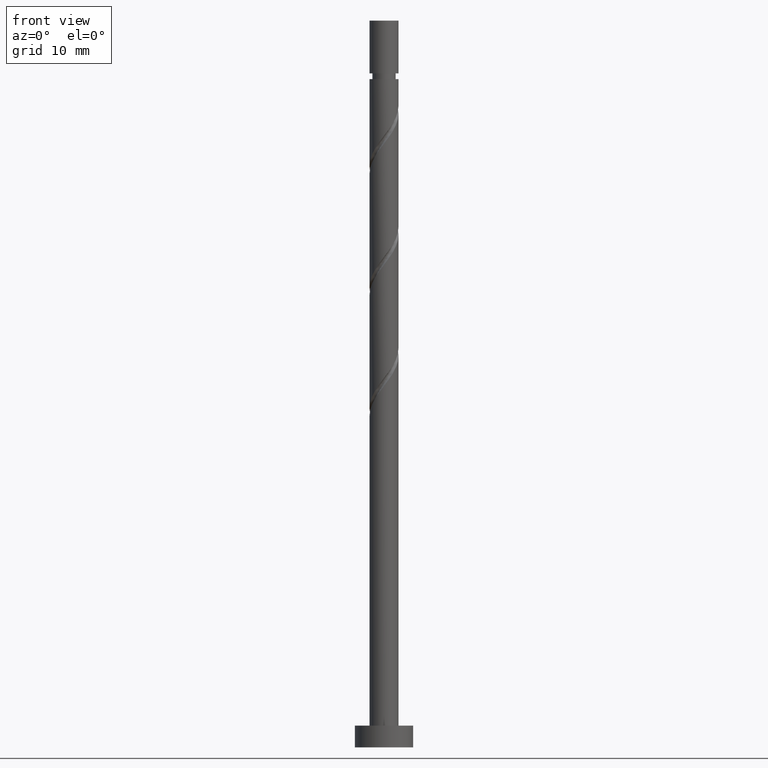
[diagram: clean part render]
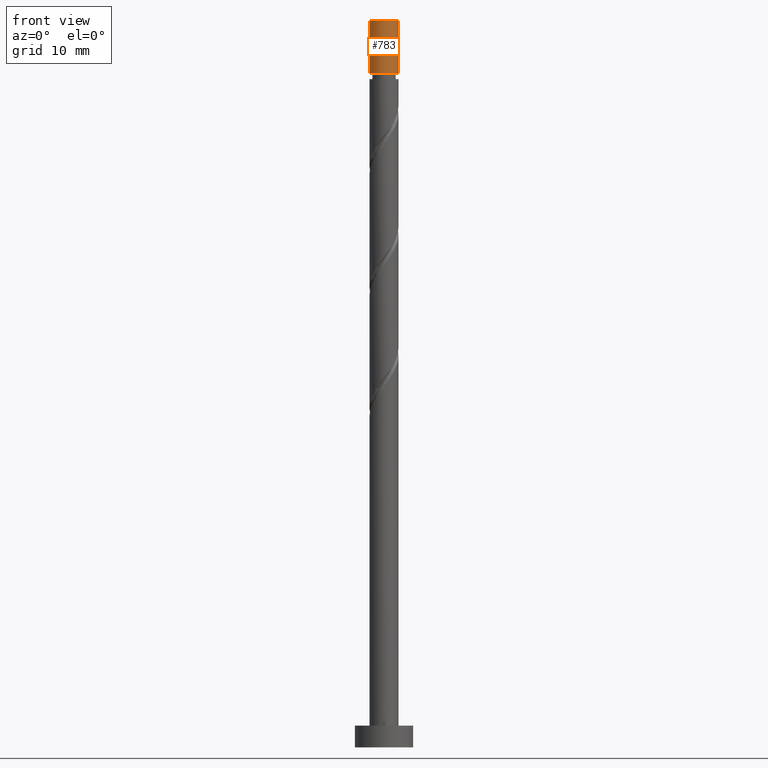
[diagram: same view with one face highlighted and labeled with its STEP entity id]
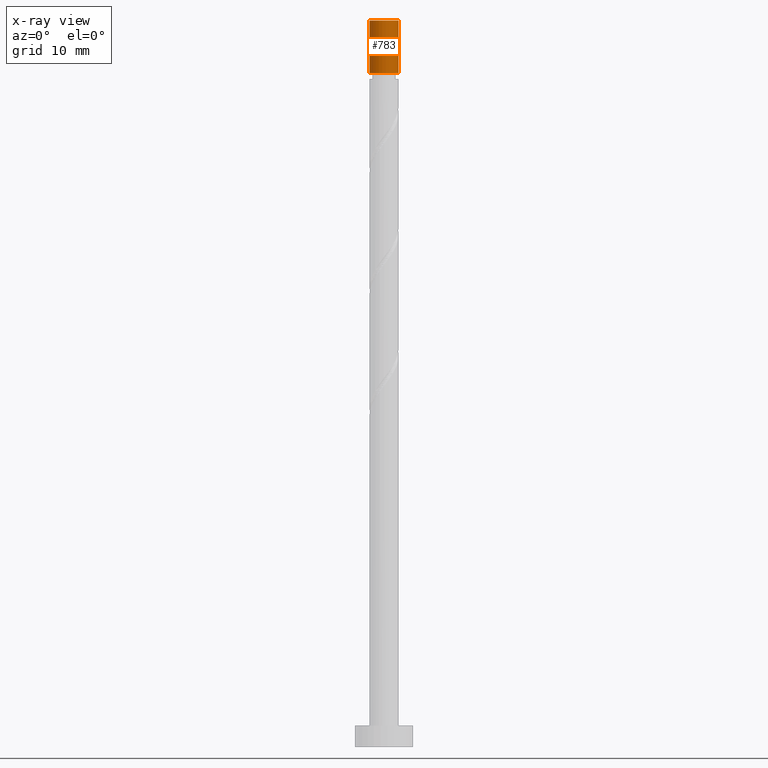
[diagram: x-ray of the same camera — body ghosted, the highlighted face saturated]
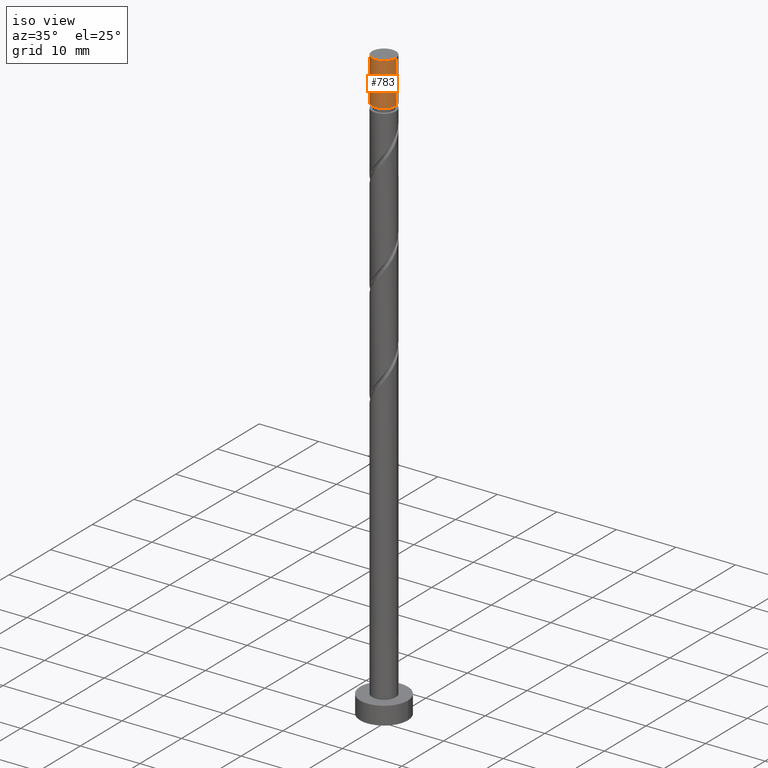
[diagram: same view with one face highlighted and labeled with its STEP entity id]
A machine part, front view. The second image highlights one B-rep face of the part: STEP entity #783.
The next image is the same camera in x-ray: the body ghosted, the highlighted face saturated — about 0% of this face is hidden behind the body in this view.
A second angle (iso view) of the same face is appended — the face is thin or edge-on in the first view.
In plain terms, the highlighted cylindrical surface (edge-blend (fillet) strip) has radius 2 mm, axis along (-0, -0, -1).
Its self-contained STEP definition (entity closure, byte-faithful):
#1 = EDGE_LOOP ( 'NONE', ( #791, #993, #561, #537 ) ) ;
#34 = DIRECTION ( 'NONE',  ( -0.000000000000000000, -0.000000000000000000, -1.000000000000000000 ) ) ;
#71 = EDGE_CURVE ( 'NONE', #328, #897, #762, .T. ) ;
#109 = CARTESIAN_POINT ( 'NONE',  ( 0.000000000000000000, 0.000000000000000000, 100.0000000000000000 ) ) ;
#123 = AXIS2_PLACEMENT_3D ( 'NONE', #886, #1465, #1228 ) ;
#328 = VERTEX_POINT ( 'NONE', #813 ) ;
#330 = DIRECTION ( 'NONE',  ( 0.000000000000000000, 0.000000000000000000, 1.000000000000000000 ) ) ;
#344 = AXIS2_PLACEMENT_3D ( 'NONE', #109, #330, #1224 ) ;
#360 = FACE_OUTER_BOUND ( 'NONE', #1, .T. ) ;
#406 = EDGE_CURVE ( 'NONE', #897, #535, #1058, .T. ) ;
#412 = CARTESIAN_POINT ( 'NONE',  ( 2.000000000000000888, 2.449293598294706907E-16, 92.73778771969386980 ) ) ;
#430 = CARTESIAN_POINT ( 'NONE',  ( -2.000000000000000000, 0.000000000000000000, 100.0000000000000000 ) ) ;
#534 = EDGE_CURVE ( 'NONE', #328, #1239, #1432, .T. ) ;
#535 = VERTEX_POINT ( 'NONE', #412 ) ;
#537 = ORIENTED_EDGE ( 'NONE', *, *, #1265, .F. ) ;
#561 = ORIENTED_EDGE ( 'NONE', *, *, #534, .T. ) ;
#562 = DIRECTION ( 'NONE',  ( -1.000000000000000000, 0.000000000000000000, 0.000000000000000000 ) ) ;
#572 = DIRECTION ( 'NONE',  ( -0.000000000000000000, -0.000000000000000000, -1.000000000000000000 ) ) ;
#605 = CARTESIAN_POINT ( 'NONE',  ( 2.000000000000000000, 2.449293598294705921E-16, 100.0000000000000000 ) ) ;
#677 = CARTESIAN_POINT ( 'NONE',  ( -2.000000000000000888, 0.000000000000000000, 92.73778771969386980 ) ) ;
#689 = AXIS2_PLACEMENT_3D ( 'NONE', #784, #572, #562 ) ;
#762 = CIRCLE ( 'NONE', #344, 2.000000000000000000 ) ;
#783 = ADVANCED_FACE ( 'NONE', ( #360 ), #1019, .T. ) ;
#784 = CARTESIAN_POINT ( 'NONE',  ( 0.000000000000000000, 0.000000000000000000, 100.0000000000000000 ) ) ;
#791 = ORIENTED_EDGE ( 'NONE', *, *, #406, .F. ) ;
#813 = CARTESIAN_POINT ( 'NONE',  ( -2.000000000000000000, 0.000000000000000000, 100.0000000000000000 ) ) ;
#876 = DIRECTION ( 'NONE',  ( -0.000000000000000000, -0.000000000000000000, -1.000000000000000000 ) ) ;
#886 = CARTESIAN_POINT ( 'NONE',  ( 0.000000000000000000, 0.000000000000000000, 92.73778771969386980 ) ) ;
#897 = VERTEX_POINT ( 'NONE', #605 ) ;
#993 = ORIENTED_EDGE ( 'NONE', *, *, #71, .F. ) ;
#1019 = CYLINDRICAL_SURFACE ( 'NONE', #689, 2.000000000000000000 ) ;
#1058 = LINE ( 'NONE', #1391, #1259 ) ;
#1135 = VECTOR ( 'NONE', #876, 1000.000000000000000 ) ;
#1224 = DIRECTION ( 'NONE',  ( 1.000000000000000000, 0.000000000000000000, 0.000000000000000000 ) ) ;
#1228 = DIRECTION ( 'NONE',  ( -1.000000000000000000, 0.000000000000000000, 0.000000000000000000 ) ) ;
#1239 = VERTEX_POINT ( 'NONE', #677 ) ;
#1259 = VECTOR ( 'NONE', #34, 1000.000000000000000 ) ;
#1265 = EDGE_CURVE ( 'NONE', #535, #1239, #1415, .T. ) ;
#1391 = CARTESIAN_POINT ( 'NONE',  ( 2.000000000000000000, 2.449293598294705921E-16, 100.0000000000000000 ) ) ;
#1415 = CIRCLE ( 'NONE', #123, 2.000000000000000888 ) ;
#1432 = LINE ( 'NONE', #430, #1135 ) ;
#1465 = DIRECTION ( 'NONE',  ( -0.000000000000000000, -0.000000000000000000, -1.000000000000000000 ) ) ;